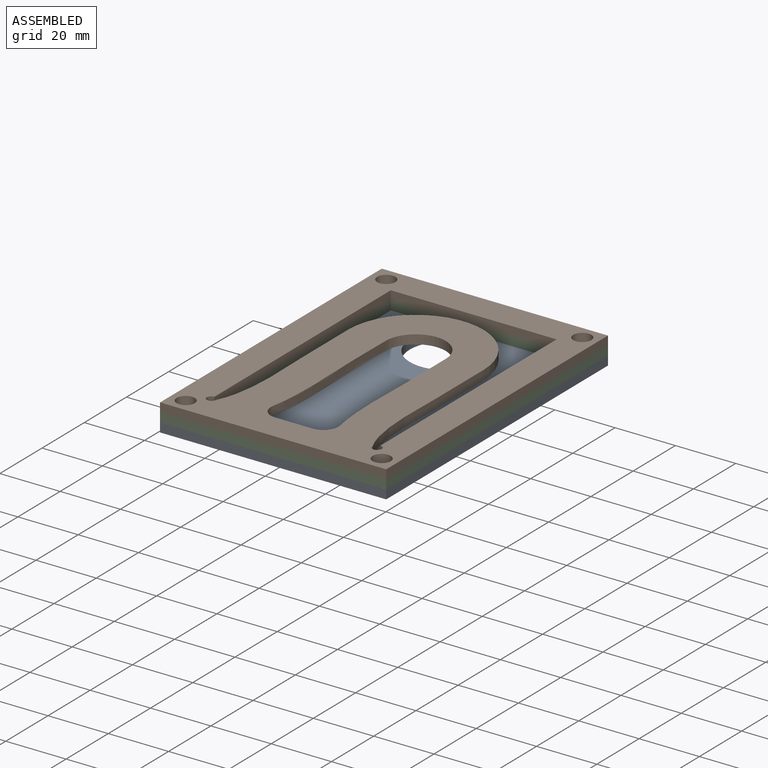
[diagram: assembled view]
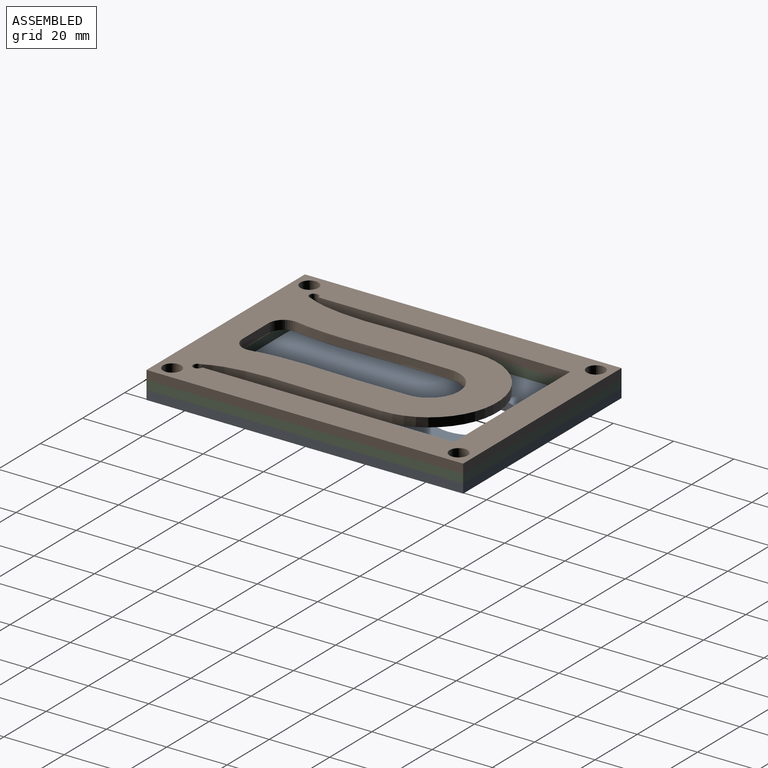
[diagram: assembled view, second angle]
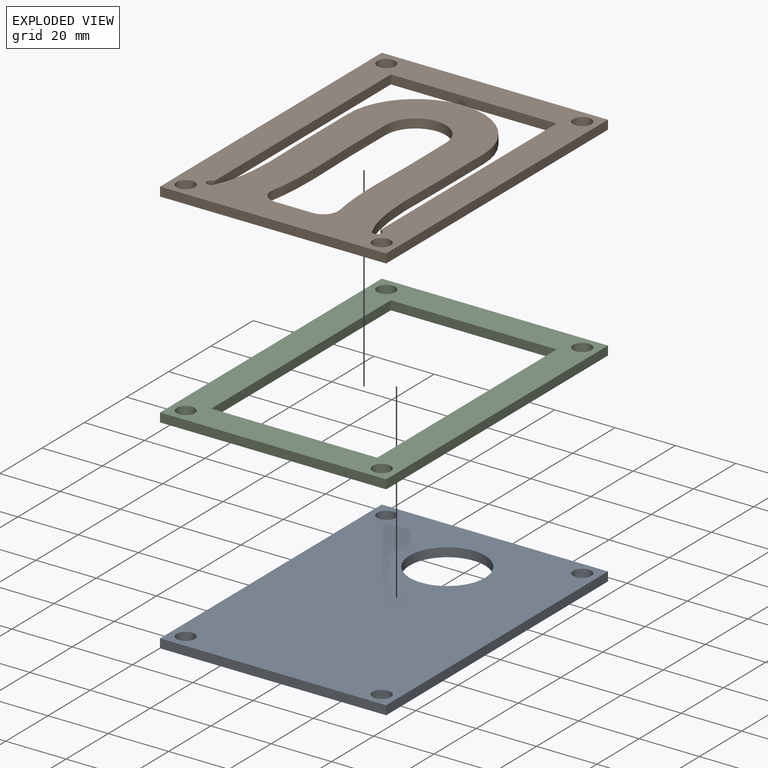
[diagram: exploded view]
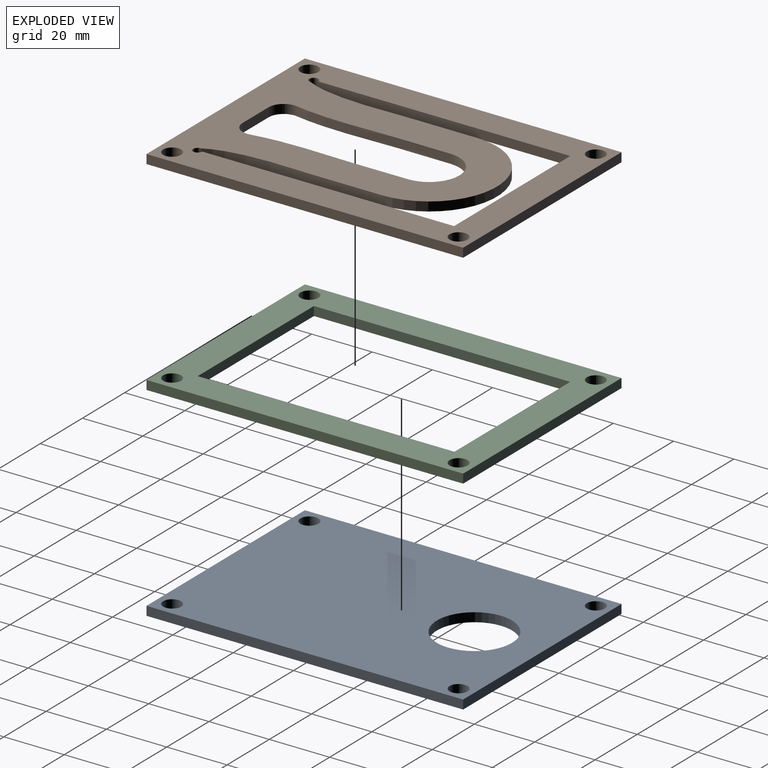
[diagram: exploded view, second angle]
ASSEMBLY  parts=3 mates=2
PART A: 11 faces, bbox 75x105x3 mm
  f0: plane 75x3mm, normal (0,1,0), area 225mm2, adj f1,f4,f5,f6
  f1: plane 105x3mm, normal (-1,0,0), area 315mm2, adj f0,f2,f5,f6
  f2: plane 75x3mm, normal (0,-1,0), area 225mm2, adj f1,f4,f5,f6
  f3: cylinder r=12.5mm len=25mm, axis (0,0,-1), area 235.6mm2, adj f5,f6
  f4: plane 105x3mm, normal (1,0,0), area 315mm2, adj f0,f2,f5,f6
  f5: plane 105x75mm, normal (0,0,1), area 7271mm2, adj f0,f1,f2,f3,f4,f7,f8,f9
  f6: plane 105x75mm, normal (0,0,-1), area 7271mm2, adj f0,f1,f2,f3,f4,f7,f8,f9
  f7: cylinder r=3mm len=6mm, axis (0,0,1), area 56.5mm2, adj f5,f6
  f8: cylinder r=3mm len=6mm, axis (0,0,1), area 56.5mm2, adj f5,f6
  f9: cylinder r=3mm len=6mm, axis (0,0,1), area 56.5mm2, adj f5,f6
  f10: cylinder r=3mm len=6mm, axis (0,0,1), area 56.5mm2, adj f5,f6
PART B: 24 faces, bbox 75x105x3 mm
  f0: cylinder r=10mm len=20mm, axis (0,0,-1), area 94.3mm2, adj f1,f17,f18,f19
  f1: extruded ~51.65x3mm, area 155.2mm2, adj f0,f2,f18,f19
  f2: cylinder r=5mm len=5.92mm, axis (0,0,-1), area 26.3mm2, adj f1,f3,f18,f19
  f3: plane 12.34x3mm, normal (0,1,0), area 37mm2, adj f2,f4,f18,f19
  f4: cylinder r=5mm len=5.92mm, axis (0,0,-1), area 26.3mm2, adj f3,f17,f18,f19
  f5: plane 75x3mm, normal (0,1,0), area 225mm2, adj f6,f15,f18,f19
  f6: plane 105x3mm, normal (-1,0,0), area 315mm2, adj f5,f7,f18,f19
  f7: plane 75x3mm, normal (0,-1,0), area 225mm2, adj f6,f15,f18,f19
  f8: plane 83.5x3mm, normal (-1,0,0), area 250.5mm2, adj f9,f16,f18,f19
  f9: cylinder r=1.5mm len=3mm, axis (0,0,-1), area 21.2mm2, adj f8,f10,f18,f19
  f10: extruded ~57.5x3.75mm, area 174mm2, adj f9,f11,f18,f19
  f11: cylinder r=22.5mm len=45mm, axis (0,0,-1), area 212.1mm2, adj f10,f12,f18,f19
  f12: extruded ~57.5x3.75mm, area 174mm2, adj f11,f13,f18,f19
  f13: cylinder r=1.5mm len=3mm, axis (0,0,-1), area 21.2mm2, adj f12,f14,f18,f19
  f14: plane 83.5x3mm, normal (1,0,0), area 250.5mm2, adj f13,f16,f18,f19
  f15: plane 105x3mm, normal (1,0,0), area 315mm2, adj f5,f7,f18,f19
  f16: plane 55x3mm, normal (0,-1,0), area 165mm2, adj f8,f14,f18,f19
  f17: extruded ~51.65x3mm, area 155.2mm2, adj f0,f4,f18,f19
  f18: plane 105x75mm, normal (0,0,1), area 5176.7mm2, adj f0,f1,f2,f3,f4,f5,f6,f7
  f19: plane 105x75mm, normal (0,0,-1), area 5176.7mm2, adj f0,f1,f2,f3,f4,f5,f6,f7
  f20: cylinder r=3mm len=6mm, axis (0,0,-1), area 56.5mm2, adj f18,f19
  f21: cylinder r=3mm len=6mm, axis (0,0,-1), area 56.5mm2, adj f18,f19
  f22: cylinder r=3mm len=6mm, axis (0,0,-1), area 56.5mm2, adj f18,f19
  f23: cylinder r=3mm len=6mm, axis (0,0,-1), area 56.5mm2, adj f18,f19
PART C: 14 faces, bbox 75x105x3 mm
  f0: plane 75x3mm, normal (0,1,0), area 225mm2, adj f1,f7,f8,f9
  f1: plane 105x3mm, normal (-1,0,0), area 315mm2, adj f0,f2,f8,f9
  f2: plane 75x3mm, normal (0,-1,0), area 225mm2, adj f1,f7,f8,f9
  f3: plane 85x3mm, normal (-1,0,0), area 255mm2, adj f4,f6,f8,f9
  f4: plane 55x3mm, normal (0,1,0), area 165mm2, adj f3,f5,f8,f9
  f5: plane 85x3mm, normal (1,0,0), area 255mm2, adj f4,f6,f8,f9
  f6: plane 55x3mm, normal (0,-1,0), area 165mm2, adj f3,f5,f8,f9
  f7: plane 105x3mm, normal (1,0,0), area 315mm2, adj f0,f2,f8,f9
  f8: plane 105x75mm, normal (0,0,1), area 3086.9mm2, adj f0,f1,f2,f3,f4,f5,f6,f7
  f9: plane 105x75mm, normal (0,0,-1), area 3086.9mm2, adj f0,f1,f2,f3,f4,f5,f6,f7
  f10: cylinder r=3mm len=6mm, axis (0,0,-1), area 56.5mm2, adj f8,f9
  f11: cylinder r=3mm len=6mm, axis (0,0,-1), area 56.5mm2, adj f8,f9
  f12: cylinder r=3mm len=6mm, axis (0,0,-1), area 56.5mm2, adj f8,f9
  f13: cylinder r=3mm len=6mm, axis (0,0,-1), area 56.5mm2, adj f8,f9
PLACE A t=(0,2.03,-3)mm
PLACE B rot(axis=(0,1,0),180deg) t=(0,2.03,6)mm
PLACE C rot(axis=(1,0,0),180deg) t=(0,2.03,3)mm
MATE fastened B.f18 <-> C.f9  axis (0,0,-1) through (-37.5,2.03,3)mm
MATE fastened C.f8 <-> A.f5  axis (0,0,-1) through (-37.5,2.03,0)mm
